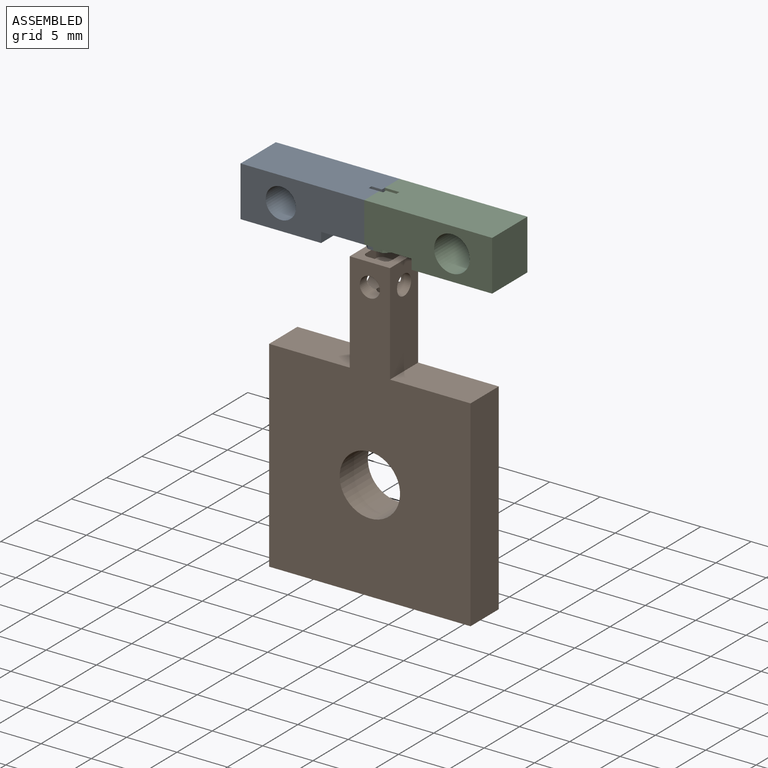
[diagram: assembled view]
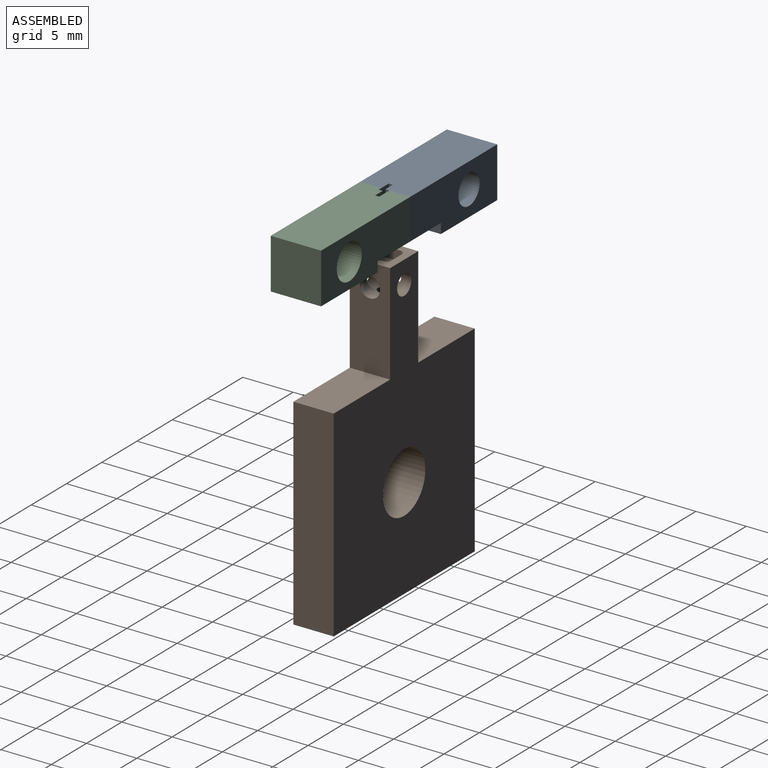
[diagram: assembled view, second angle]
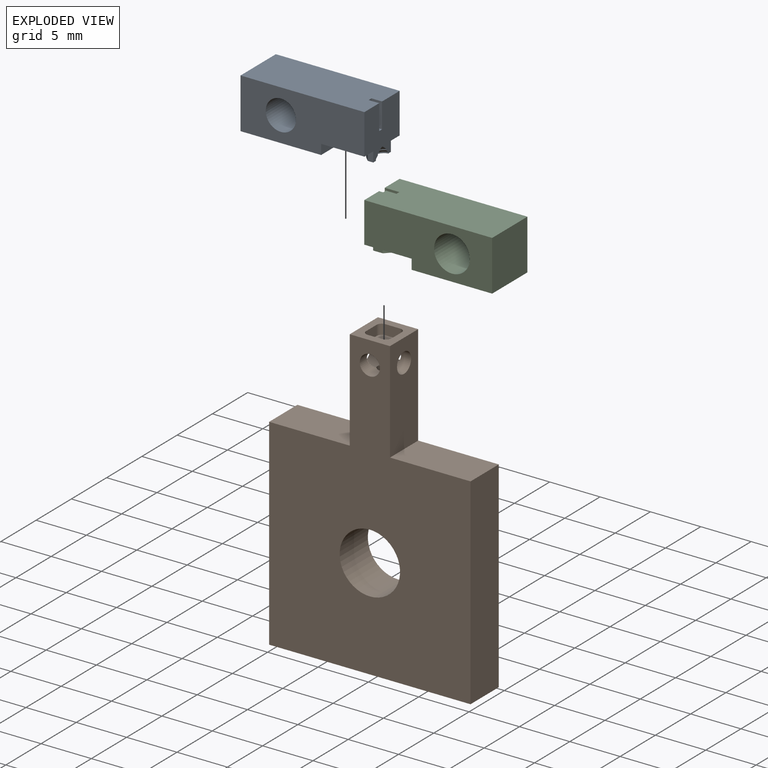
[diagram: exploded view]
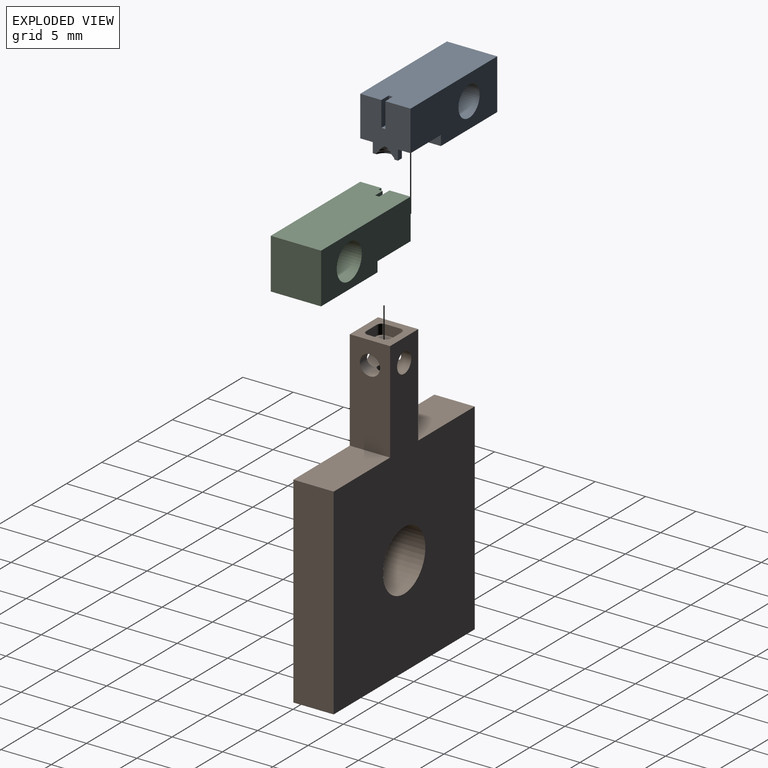
[diagram: exploded view, second angle]
ASSEMBLY  parts=3 mates=3
PART A: 23 faces, bbox 5x12.5x5 mm
  f0: plane 12.3x5mm, normal (1,0,0), area 50.1mm2, adj f2,f4,f13,f19,f20,f21,f22
  f1: plane 12.3x5mm, normal (-1,0,0), area 50.1mm2, adj f2,f4,f13,f19,f20,f21,f22
  f2: plane 12.3x5mm, normal (0,0,1), area 61.1mm2, adj f0,f1,f4,f5,f7,f8,f21
  f3: cylinder r=0.62mm len=1.18mm, axis (0,0,-1), area 0.2mm2, adj f4,f14,f16
  f4: plane 5.01x5.01mm, normal (0,-1,0), area 20.5mm2, adj f0,f1,f2,f3,f5,f6,f7,f9
  f5: plane 2.5x1.05mm, normal (1,0,0), area 2.6mm2, adj f2,f4,f8,f9
  f6: plane 2.5x1.05mm, normal (0,0,-1), area 1.5mm2, adj f4,f10,f11,f12,f15,f17,f18
  f7: plane 2.5x1.05mm, normal (-1,0,0), area 2.6mm2, adj f2,f4,f8,f9
  f8: plane 2.5x0.4mm, normal (0,-1,0), area 1mm2, adj f2,f5,f7,f9
  f9: plane 1.05x0.4mm, normal (0,0,1), area 0.4mm2, adj f4,f5,f7,f8
  f10: plane 1x0.55mm, normal (1,0,0), area 0.5mm2, adj f4,f6,f13,f17
  f11: plane 1.5x1mm, normal (0,1,0), area 1.5mm2, adj f6,f13,f17,f18
  f12: plane 1x0.55mm, normal (-1,0,0), area 0.5mm2, adj f4,f6,f13,f18
  f13: plane 5x4.3mm, normal (0,0,-1), area 19.1mm2, adj f0,f1,f4,f10,f11,f12,f17,f18
  f14: cone r=0.62mm half-angle=45deg, axis (0,0,-1), area 0.5mm2, adj f3,f4
  f15: cylinder r=0.9mm len=1.76mm, axis (0,0,-1), area 0.3mm2, adj f4,f6,f16
  f16: cone r=0.93mm half-angle=45deg, axis (0,0,-1), area 0.8mm2, adj f3,f4,f15
  f17: plane 1x0.5mm, normal (0.71,0.71,0), area 0.7mm2, adj f6,f10,f11,f13
  f18: plane 1x0.5mm, normal (-0.71,0.71,0), area 0.7mm2, adj f6,f11,f12,f13
  f19: plane 5x1mm, normal (0,-1,0), area 5mm2, adj f0,f1,f13,f20
  f20: plane 8x5mm, normal (0,0,-1), area 40mm2, adj f0,f1,f19,f21
  f21: plane 5x5mm, normal (0,1,0), area 25mm2, adj f0,f1,f2,f20
  f22: cylinder r=1.5mm len=5mm, axis (1,0,0), area 47.1mm2, adj f0,f1
PART B: 27 faces, bbox 20x4x30 mm
  f0: cylinder r=1mm len=2mm, axis (0,-1,0), area 7.9mm2, adj f2,f6,f9,f15,f16
  f1: plane 4x4mm, normal (0,0,1), area 10mm2, adj f3,f4,f5,f6,f11,f12,f13,f14
  f2: cylinder r=0.62mm len=1.25mm, axis (0,0,1), area 1.1mm2, adj f0,f7,f10,f15,f16
  f3: plane 10x4mm, normal (1,0,0), area 36.9mm2, adj f1,f4,f6,f15,f21
  f4: plane 30x20mm, normal (0,1,0), area 408.6mm2, adj f1,f3,f5,f7,f21,f22,f23,f24
  f5: plane 10x4mm, normal (-1,0,0), area 36.9mm2, adj f1,f4,f6,f16,f23
  f6: plane 30x20mm, normal (0,-1,0), area 408.6mm2, adj f0,f1,f3,f5,f21,f22,f23,f24
  f7: cylinder r=1mm len=2mm, axis (0,-1,0), area 7.9mm2, adj f2,f4,f9,f15,f16
  f8: plane 1.25x1.25mm, normal (0,0,1), area 1.2mm2, adj f9
  f9: cylinder r=0.62mm len=1.25mm, axis (0,0,1), area 3.1mm2, adj f0,f7,f8,f15,f16
  f10: plane 2.5x2.5mm, normal (0,0,1), area 4.8mm2, adj f2,f11,f12,f13,f14,f17,f18,f19
  f11: plane 1.5x1mm, normal (-1,0,0), area 1.5mm2, adj f1,f10,f17,f20
  f12: plane 1.5x1mm, normal (0,-1,0), area 1.5mm2, adj f1,f10,f17,f18
  f13: plane 1.5x1mm, normal (1,0,0), area 1.5mm2, adj f1,f10,f18,f19
  f14: plane 1.5x1mm, normal (0,1,0), area 1.5mm2, adj f1,f10,f19,f20
  f15: cylinder r=1mm len=2mm, axis (-1,0,0), area 7.9mm2, adj f0,f2,f3,f7,f9
  f16: cylinder r=1mm len=2mm, axis (-1,0,0), area 7.9mm2, adj f0,f2,f5,f7,f9
  f17: cylinder r=0.5mm len=1mm, axis (0,0,1), area 0.8mm2, adj f1,f10,f11,f12
  f18: cylinder r=0.5mm len=1mm, axis (0,0,-1), area 0.8mm2, adj f1,f10,f12,f13
  f19: cylinder r=0.5mm len=1mm, axis (0,0,1), area 0.8mm2, adj f1,f10,f13,f14
  f20: cylinder r=0.5mm len=1mm, axis (0,0,-1), area 0.8mm2, adj f1,f10,f11,f14
  f21: plane 8x4mm, normal (0,0,1), area 32mm2, adj f3,f4,f6,f22
  f22: plane 20x4mm, normal (1,0,0), area 80mm2, adj f4,f6,f21,f25
  f23: plane 8x4mm, normal (0,0,1), area 32mm2, adj f4,f5,f6,f24
  f24: plane 20x4mm, normal (-1,0,0), area 80mm2, adj f4,f6,f23,f25
  f25: plane 20x4mm, normal (0,0,-1), area 80mm2, adj f4,f6,f22,f24
  f26: cylinder r=3mm len=6mm, axis (0,1,0), area 75.4mm2, adj f4,f6
PART C: 26 faces, bbox 5.1x12.9x5.1 mm
  f0: plane 12.7x5mm, normal (1,0,0), area 48.9mm2, adj f7,f13,f21,f22,f23,f24,f25
  f1: plane 12.7x5mm, normal (-1,0,0), area 48.9mm2, adj f7,f13,f20,f22,f23,f24,f25
  f2: cylinder r=0.62mm len=1.25mm, axis (0,0,-1), area 0.2mm2, adj f8,f10,f20,f21
  f3: plane 4.46x0.53mm, normal (-1,0,0), area 1.7mm2, adj f8,f11,f13,f21
  f4: plane 2.5x1.45mm, normal (0,0,-1), area 1.7mm2, adj f5,f6,f9,f17,f18,f19,f20,f21
  f5: plane 1x0.95mm, normal (1,0,0), area 1mm2, adj f4,f7,f18,f21
  f6: plane 1x0.95mm, normal (-1,0,0), area 1mm2, adj f4,f7,f19,f20
  f7: plane 5x4.7mm, normal (0,0,-1), area 20.1mm2, adj f0,f1,f5,f6,f17,f18,f19,f20
  f8: cone r=0.62mm half-angle=45deg, axis (0,0,-1), area 0.7mm2, adj f2,f3,f11,f12,f20,f21
  f9: cylinder r=0.9mm len=1.8mm, axis (0,0,-1), area 0.4mm2, adj f4,f10,f20,f21
  f10: cone r=0.93mm half-angle=45deg, axis (0,0,-1), area 1.1mm2, adj f2,f9,f20,f21
  f11: plane 4.32x0.8mm, normal (0,-1,0), area 2.3mm2, adj f3,f8,f12,f13,f14,f16
  f12: plane 4.46x1.58mm, normal (1,0,0), area 4.3mm2, adj f8,f11,f13,f15,f16,f20
  f13: plane 12.7x5mm, normal (0,0,1), area 62.8mm2, adj f0,f1,f3,f11,f12,f14,f15,f20
  f14: plane 2.5x1.05mm, normal (-1,0,0), area 2.6mm2, adj f11,f13,f15,f16
  f15: plane 2.5x0.4mm, normal (0,-1,0), area 1mm2, adj f12,f13,f14,f16
  f16: plane 1.05x0.4mm, normal (0,0,1), area 0.4mm2, adj f11,f12,f14,f15
  f17: plane 1.5x1mm, normal (0,1,0), area 1.5mm2, adj f4,f7,f18,f19
  f18: plane 1x0.5mm, normal (0.71,0.71,0), area 0.7mm2, adj f4,f5,f7,f17
  f19: plane 1x0.5mm, normal (-0.71,0.71,0), area 0.7mm2, adj f4,f6,f7,f17
  f20: plane 5.01x2.11mm, normal (0,-1,0), area 9.1mm2, adj f1,f2,f4,f6,f7,f8,f9,f10
  f21: plane 5.01x2.11mm, normal (0,-1,0), area 9.1mm2, adj f0,f2,f3,f4,f5,f7,f8,f9
  f22: plane 5x1mm, normal (0,-1,0), area 5mm2, adj f0,f1,f7,f23
  f23: plane 8x5mm, normal (0,0,-1), area 40mm2, adj f0,f1,f22,f24
  f24: plane 5x5mm, normal (0,1,0), area 25mm2, adj f0,f1,f13,f23
  f25: cylinder r=1.77mm len=5mm, axis (1,0,0), area 55.7mm2, adj f0,f1
PLACE A rot(axis=(0,0,1),90deg) t=(-2.41,2.1,23.1)mm
PLACE B t=(0.08,2.1,9.89)mm
PLACE C rot(axis=(0,0,-1),90deg) t=(2.58,2.1,23.1)mm
MATE planar C.f13 <-> A.f2  axis (0,0,1) through (6.3,2.1,25.6)mm
MATE slider C.f2 <-> B.f2  axis (0,0,-1) through (0.08,2.1,20.73)mm
MATE planar C.f6 <-> B.f12  axis (0,1,0) through (0.35,3.35,21.1)mm
